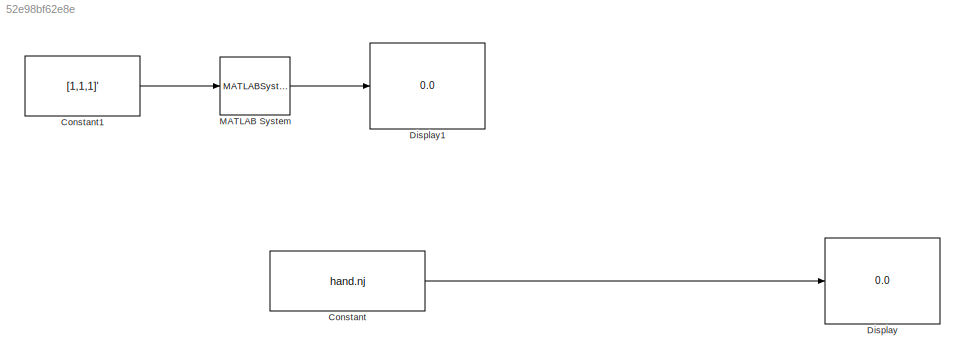
MODEL slx_52e98bf62e8e
KIND model
CONFIG AbsTol = auto
CONFIG EnableMultiTasking = off
CONFIG FixedStep = auto
CONFIG InitFcn = %Hand = hand;
CONFIG MaxStep = auto
CONFIG MinStep = auto
CONFIG RelTol = 1e-3
CONFIG SampleTimeConstraint = Unconstrained
CONFIG SolverName = VariableStepAuto
CONFIG StartTime = 0.0
CONFIG StopTime = 10.0
BLOCK [Constant] Constant
  Commented = on
  Value = hand.nj
BLOCK [Constant] Constant1
  Value = [1,1,1]'
BLOCK [Display] Display
  Commented = on
  Decimation = 1
BLOCK [Display] Display1
  Decimation = 1
BLOCK [MATLABSystem] MATLAB System
  MaskDisplay = disp('vp_tmp');\nport_label('input',1,'u');\nport_label('output',1,'y');
  MaskType = vp_tmp
  SimulateUsing = Code generation
  System = vp_tmp
  link_p = []
LINE Constant1:1 -> MATLAB System:1
LINE Constant:1 -> Display:1
LINE MATLAB System:1 -> Display1:1
